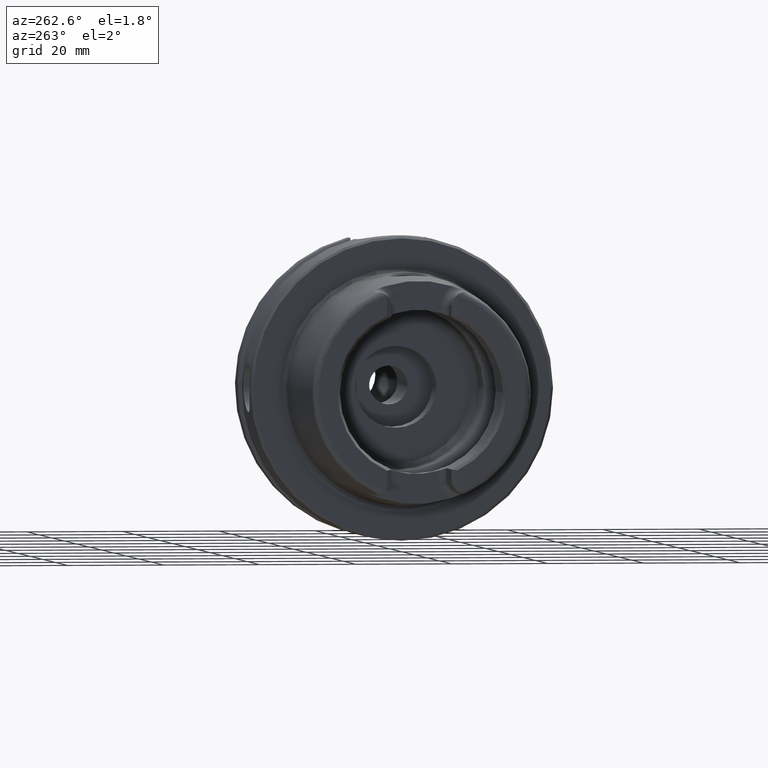
[diagram: clean part render]
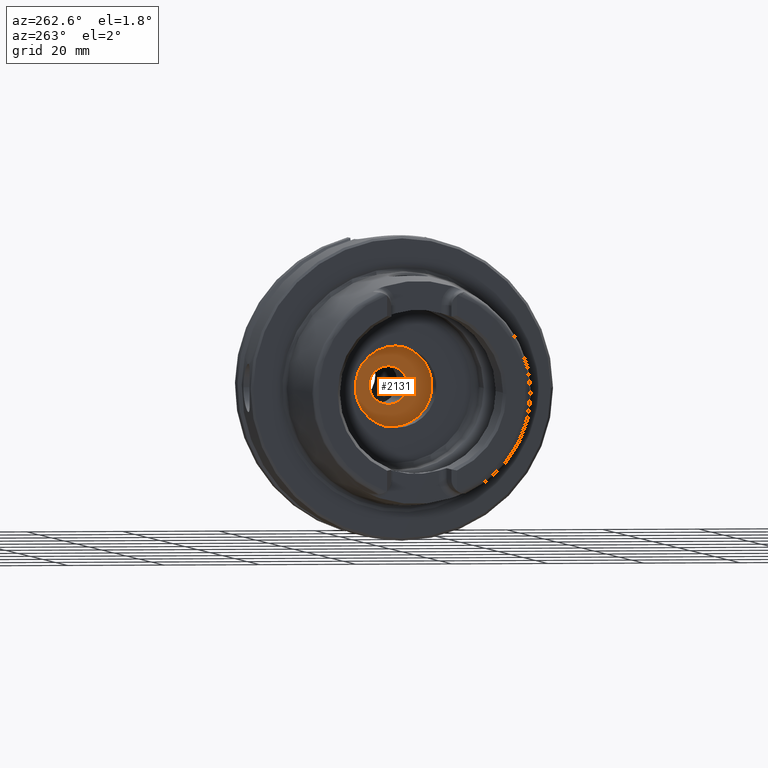
[diagram: same view with one face highlighted and labeled with its STEP entity id]
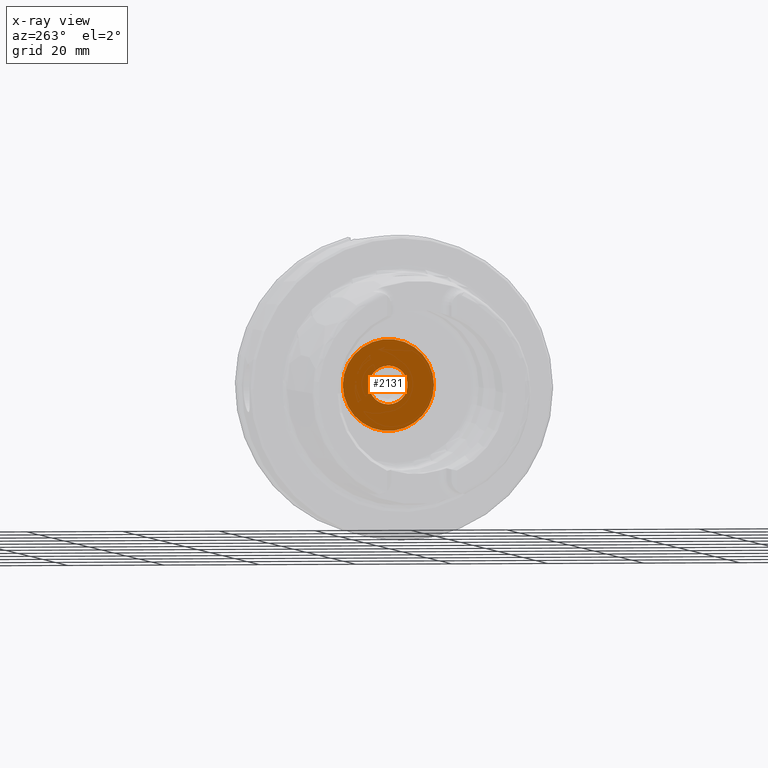
[diagram: x-ray of the same camera — body ghosted, the highlighted face saturated]
A machine part, auxiliary view. The second image highlights one B-rep face of the part: STEP entity #2131.
The next image is the same camera in x-ray: the body ghosted, the highlighted face saturated — about 0% of this face is hidden behind the body in this view.
In plain terms, the highlighted planar face has unit normal (1, 0, 0).
Its self-contained STEP definition (entity closure, byte-faithful):
#100=FACE_BOUND('',#463,.T.);
#144=PLANE('',#2398);
#328=FACE_OUTER_BOUND('',#462,.T.);
#462=EDGE_LOOP('',(#1947));
#463=EDGE_LOOP('',(#1948));
#721=CIRCLE('',#2205,4.);
#813=CIRCLE('',#2399,9.5);
#860=VERTEX_POINT('',#3147);
#1026=VERTEX_POINT('',#4494);
#1079=EDGE_CURVE('',#860,#860,#721,.T.);
#1338=EDGE_CURVE('',#1026,#1026,#813,.T.);
#1947=ORIENTED_EDGE('',*,*,#1338,.T.);
#1948=ORIENTED_EDGE('',*,*,#1079,.T.);
#2131=ADVANCED_FACE('',(#328,#100),#144,.F.);
#2205=AXIS2_PLACEMENT_3D('',#3148,#2521,#2522);
#2398=AXIS2_PLACEMENT_3D('',#4493,#2994,#2995);
#2399=AXIS2_PLACEMENT_3D('',#4495,#2996,#2997);
#2521=DIRECTION('center_axis',(1.,0.,0.));
#2522=DIRECTION('ref_axis',(0.,0.,1.));
#2994=DIRECTION('center_axis',(1.,0.,0.));
#2995=DIRECTION('ref_axis',(0.,0.,-1.));
#2996=DIRECTION('center_axis',(-1.,0.,0.));
#2997=DIRECTION('ref_axis',(0.,0.,1.));
#3147=CARTESIAN_POINT('',(22.,4.89858719658941E-16,-4.));
#3148=CARTESIAN_POINT('Origin',(22.,0.,0.));
#4493=CARTESIAN_POINT('Origin',(22.,9.5,0.));
#4494=CARTESIAN_POINT('',(22.,-9.5,1.16341445918999E-15));
#4495=CARTESIAN_POINT('Origin',(22.,0.,0.));